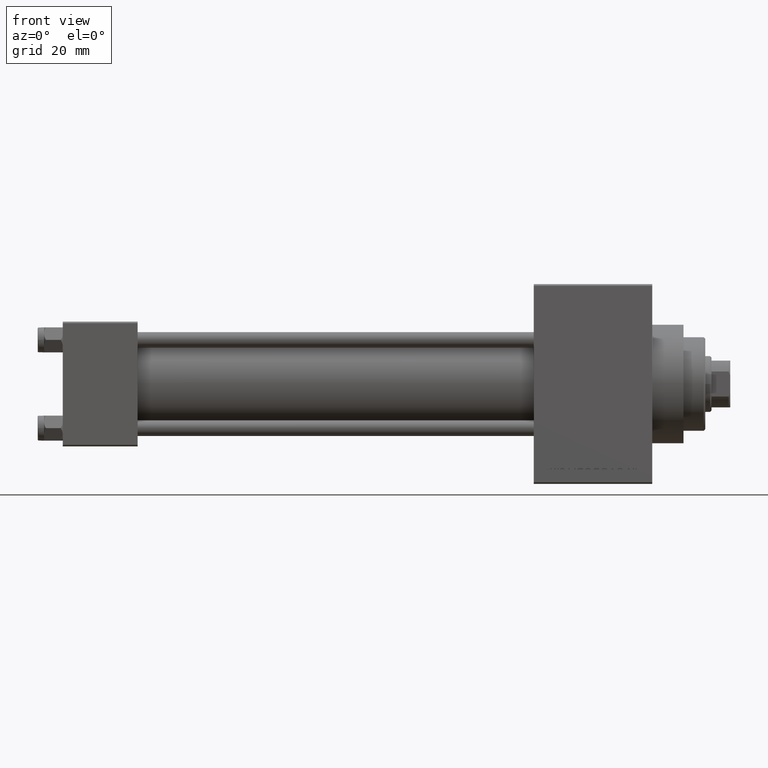
[diagram: clean part render]
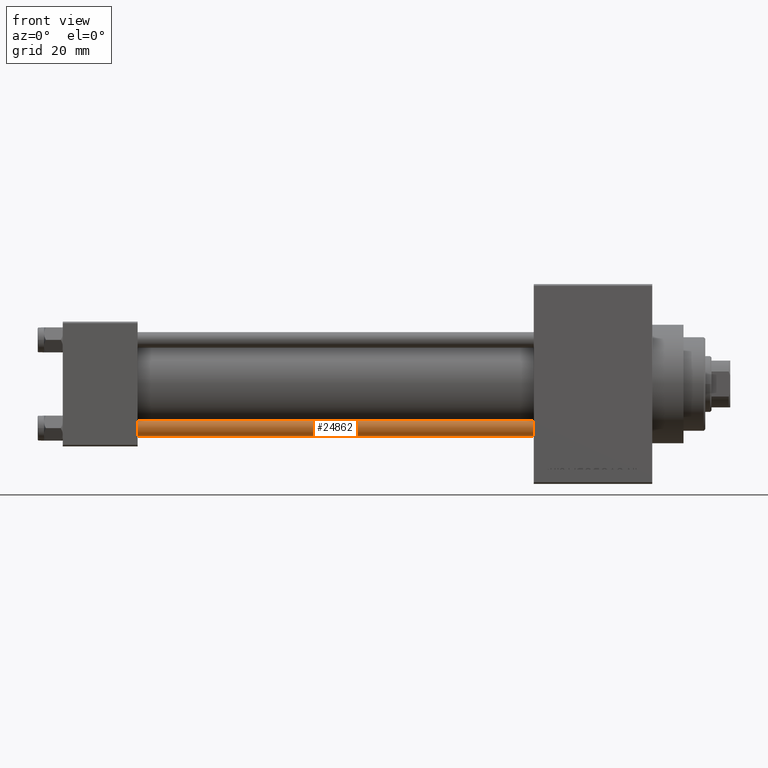
[diagram: same view with one face highlighted and labeled with its STEP entity id]
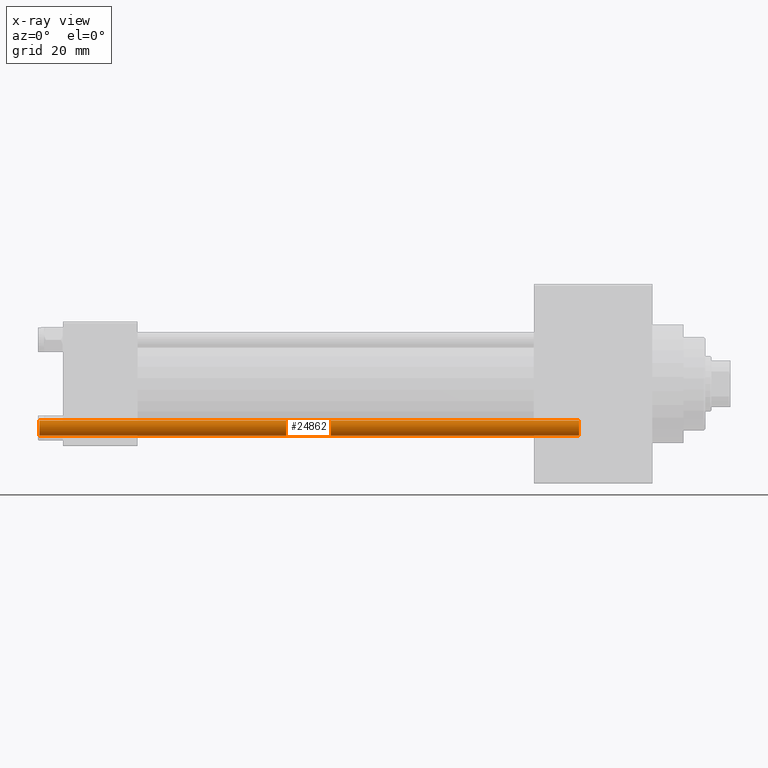
[diagram: x-ray of the same camera — body ghosted, the highlighted face saturated]
A machine part, front view. The second image highlights one B-rep face of the part: STEP entity #24862.
The next image is the same camera in x-ray: the body ghosted, the highlighted face saturated — about 0% of this face is hidden behind the body in this view.
In plain terms, the highlighted cylindrical surface (edge-blend (fillet) strip) has radius 2.5 mm, axis along (-1, 0, 0).
Its self-contained STEP definition (entity closure, byte-faithful):
#86 = VECTOR ( 'NONE', #21024, 1000.000000000000000 ) ;
#681 = EDGE_CURVE ( 'NONE', #22825, #32482, #21262, .T. ) ;
#1503 = CARTESIAN_POINT ( 'NONE',  ( 0.000000000000000000, 0.000000000000000000, 173.5000000000000000 ) ) ;
#5077 = CARTESIAN_POINT ( 'NONE',  ( 2.500000000000000000, 3.061616997868383141E-16, 174.0000000000000000 ) ) ;
#5420 = EDGE_CURVE ( 'NONE', #43956, #44422, #13165, .T. ) ;
#5471 = EDGE_CURVE ( 'NONE', #22825, #43956, #16511, .T. ) ;
#7055 = DIRECTION ( 'NONE',  ( -0.000000000000000000, -0.000000000000000000, 1.000000000000000000 ) ) ;
#9467 = DIRECTION ( 'NONE',  ( -1.000000000000000000, 0.000000000000000000, 0.000000000000000000 ) ) ;
#13033 = CYLINDRICAL_SURFACE ( 'NONE', #29966, 2.500000000000000000 ) ;
#13165 = LINE ( 'NONE', #5077, #30219 ) ;
#15159 = CARTESIAN_POINT ( 'NONE',  ( 2.500000000000000000, 3.061616997868383141E-16, 0.5000000000000281997 ) ) ;
#16511 = CIRCLE ( 'NONE', #40123, 2.500000000000000000 ) ;
#19755 = AXIS2_PLACEMENT_3D ( 'NONE', #42783, #7055, #24683 ) ;
#21024 = DIRECTION ( 'NONE',  ( -0.000000000000000000, -0.000000000000000000, -1.000000000000000000 ) ) ;
#21199 = CARTESIAN_POINT ( 'NONE',  ( -2.500000000000000000, 0.000000000000000000, 0.5000000000000281997 ) ) ;
#21262 = LINE ( 'NONE', #32460, #86 ) ;
#22825 = VERTEX_POINT ( 'NONE', #46568 ) ;
#24113 = DIRECTION ( 'NONE',  ( 0.000000000000000000, 0.000000000000000000, -1.000000000000000000 ) ) ;
#24683 = DIRECTION ( 'NONE',  ( 1.000000000000000000, 0.000000000000000000, 0.000000000000000000 ) ) ;
#24862 = ADVANCED_FACE ( 'NONE', ( #39397 ), #13033, .T. ) ;
#27223 = DIRECTION ( 'NONE',  ( -0.000000000000000000, -0.000000000000000000, -1.000000000000000000 ) ) ;
#27577 = CARTESIAN_POINT ( 'NONE',  ( 0.000000000000000000, 0.000000000000000000, 174.0000000000000000 ) ) ;
#29966 = AXIS2_PLACEMENT_3D ( 'NONE', #27577, #42093, #9467 ) ;
#30219 = VECTOR ( 'NONE', #27223, 1000.000000000000000 ) ;
#30801 = DIRECTION ( 'NONE',  ( 1.000000000000000000, 0.000000000000000000, 0.000000000000000000 ) ) ;
#31247 = ORIENTED_EDGE ( 'NONE', *, *, #681, .F. ) ;
#32460 = CARTESIAN_POINT ( 'NONE',  ( -2.500000000000000000, 0.000000000000000000, 174.0000000000000000 ) ) ;
#32482 = VERTEX_POINT ( 'NONE', #21199 ) ;
#33314 = CARTESIAN_POINT ( 'NONE',  ( 2.500000000000000000, 3.061616997868383141E-16, 173.5000000000000000 ) ) ;
#38780 = CIRCLE ( 'NONE', #19755, 2.500000000000000000 ) ;
#39049 = ORIENTED_EDGE ( 'NONE', *, *, #5420, .T. ) ;
#39397 = FACE_OUTER_BOUND ( 'NONE', #46571, .T. ) ;
#40123 = AXIS2_PLACEMENT_3D ( 'NONE', #1503, #24113, #30801 ) ;
#41927 = EDGE_CURVE ( 'NONE', #44422, #32482, #38780, .T. ) ;
#42093 = DIRECTION ( 'NONE',  ( -0.000000000000000000, -0.000000000000000000, -1.000000000000000000 ) ) ;
#42196 = ORIENTED_EDGE ( 'NONE', *, *, #5471, .T. ) ;
#42783 = CARTESIAN_POINT ( 'NONE',  ( 0.000000000000000000, 0.000000000000000000, 0.5000000000000281997 ) ) ;
#43956 = VERTEX_POINT ( 'NONE', #33314 ) ;
#44422 = VERTEX_POINT ( 'NONE', #15159 ) ;
#45366 = ORIENTED_EDGE ( 'NONE', *, *, #41927, .T. ) ;
#46568 = CARTESIAN_POINT ( 'NONE',  ( -2.500000000000000000, 0.000000000000000000, 173.5000000000000000 ) ) ;
#46571 = EDGE_LOOP ( 'NONE', ( #42196, #39049, #45366, #31247 ) ) ;